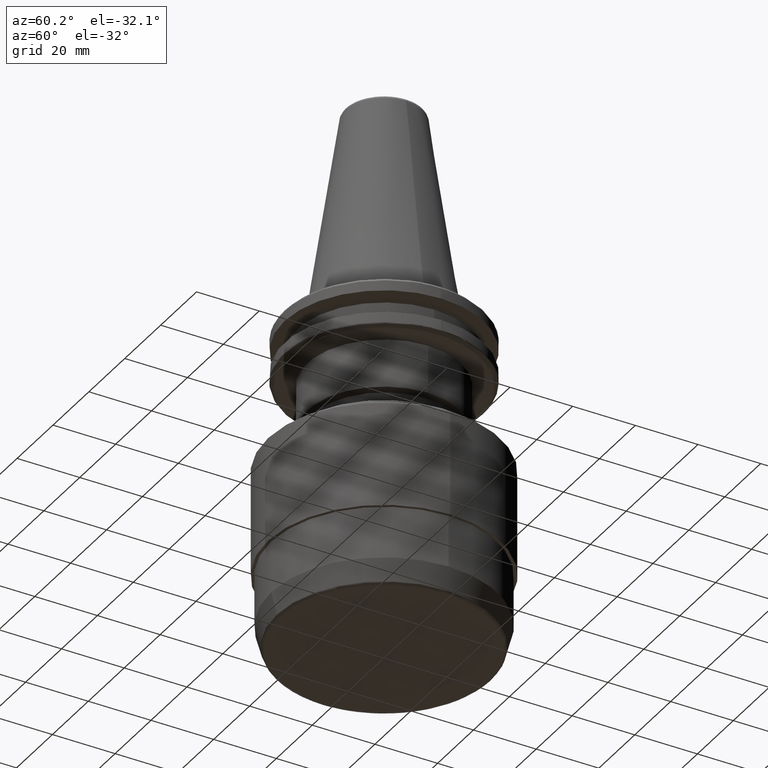
[diagram: clean part render]
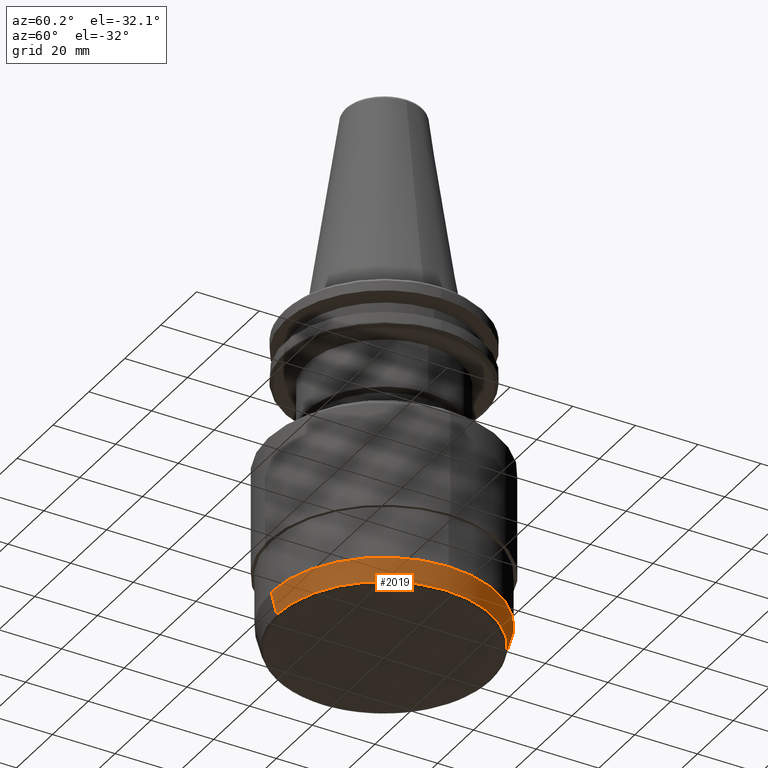
[diagram: same view with one face highlighted and labeled with its STEP entity id]
A machine part, auxiliary view. The second image highlights one B-rep face of the part: STEP entity #2019.
In plain terms, the highlighted conical surface has half-angle 15 deg.
Its self-contained STEP definition (entity closure, byte-faithful):
#24 = CARTESIAN_POINT ( 'NONE',  ( 4.408728552981645400E-015, 36.00000062100495800, -97.53589606724000300 ) ) ;
#46 = ORIENTED_EDGE ( 'NONE', *, *, #434, .F. ) ;
#60 = VERTEX_POINT ( 'NONE', #891 ) ;
#136 = ORIENTED_EDGE ( 'NONE', *, *, #1546, .T. ) ;
#139 = EDGE_CURVE ( 'NONE', #2643, #2700, #1592, .T. ) ;
#154 = DIRECTION ( 'NONE',  ( -0.0000000000000000000, -0.0000000000000000000, 1.000000000000000000 ) ) ;
#162 = CARTESIAN_POINT ( 'NONE',  ( 0.0000000000000000000, 0.0000000000000000000, -97.53589606724000300 ) ) ;
#205 = VERTEX_POINT ( 'NONE', #24 ) ;
#228 = ORIENTED_EDGE ( 'NONE', *, *, #139, .F. ) ;
#268 = DIRECTION ( 'NONE',  ( 0.0000000000000000000, -1.000000000000000000, -3.812579068080895000E-016 ) ) ;
#434 = EDGE_CURVE ( 'NONE', #60, #205, #3022, .T. ) ;
#555 = CARTESIAN_POINT ( 'NONE',  ( 4.298424506623866300E-015, 34.19859883831010400, -104.2588190451025400 ) ) ;
#732 = VERTEX_POINT ( 'NONE', #2813 ) ;
#744 = DIRECTION ( 'NONE',  ( -0.0000000000000000000, -0.0000000000000000000, 1.000000000000000000 ) ) ;
#891 = CARTESIAN_POINT ( 'NONE',  ( 36.00000062100495800, 0.0000000000000000000, -97.53589606724000300 ) ) ;
#1035 = CARTESIAN_POINT ( 'NONE',  ( 0.0000000000000000000, -36.00000062100496500, -97.53589606724000300 ) ) ;
#1038 = CARTESIAN_POINT ( 'NONE',  ( 0.0000000000000000000, 0.0000000000000000000, -104.2588190451025400 ) ) ;
#1285 = AXIS2_PLACEMENT_3D ( 'NONE', #3297, #3028, #268 ) ;
#1288 = CARTESIAN_POINT ( 'NONE',  ( 0.0000000000000000000, -34.19859883831010400, -104.2588190451025400 ) ) ;
#1307 = DIRECTION ( 'NONE',  ( 1.000000000000000000, 0.0000000000000000000, 4.057998947099616600E-016 ) ) ;
#1380 = ORIENTED_EDGE ( 'NONE', *, *, #2087, .T. ) ;
#1451 = AXIS2_PLACEMENT_3D ( 'NONE', #162, #744, #2365 ) ;
#1465 = ORIENTED_EDGE ( 'NONE', *, *, #2149, .T. ) ;
#1539 = DIRECTION ( 'NONE',  ( 0.0000000000000000000, 0.0000000000000000000, 1.000000000000000000 ) ) ;
#1546 = EDGE_CURVE ( 'NONE', #732, #1980, #1846, .T. ) ;
#1592 = LINE ( 'NONE', #3188, #2820 ) ;
#1721 = FACE_OUTER_BOUND ( 'NONE', #3300, .T. ) ;
#1837 = CARTESIAN_POINT ( 'NONE',  ( 0.0000000000000000000, 0.0000000000000000000, -97.53589606724000300 ) ) ;
#1846 = CIRCLE ( 'NONE', #2951, 34.19859883831010400 ) ;
#1966 = DIRECTION ( 'NONE',  ( 0.0000000000000000000, -0.2588190451025152400, 0.9659258262890697600 ) ) ;
#1980 = VERTEX_POINT ( 'NONE', #555 ) ;
#2019 = ADVANCED_FACE ( 'NONE', ( #1721 ), #3046, .T. ) ;
#2035 = CIRCLE ( 'NONE', #2737, 36.00000062100495800 ) ;
#2086 = DIRECTION ( 'NONE',  ( 1.000000000000000000, 0.0000000000000000000, 0.0000000000000000000 ) ) ;
#2087 = EDGE_CURVE ( 'NONE', #2643, #732, #3132, .T. ) ;
#2149 = EDGE_CURVE ( 'NONE', #1980, #205, #2967, .T. ) ;
#2241 = VECTOR ( 'NONE', #3112, 999.9999999999998900 ) ;
#2365 = DIRECTION ( 'NONE',  ( 1.000000000000000000, 0.0000000000000000000, 0.0000000000000000000 ) ) ;
#2506 = AXIS2_PLACEMENT_3D ( 'NONE', #3105, #1539, #3367 ) ;
#2643 = VERTEX_POINT ( 'NONE', #1288 ) ;
#2700 = VERTEX_POINT ( 'NONE', #1035 ) ;
#2703 = EDGE_CURVE ( 'NONE', #2700, #60, #2035, .T. ) ;
#2737 = AXIS2_PLACEMENT_3D ( 'NONE', #1837, #154, #2086 ) ;
#2813 = CARTESIAN_POINT ( 'NONE',  ( 34.19859883831010400, 0.0000000000000000000, -104.2588190451025400 ) ) ;
#2820 = VECTOR ( 'NONE', #1966, 1000.000000000000100 ) ;
#2850 = CARTESIAN_POINT ( 'NONE',  ( 4.457714348896365900E-015, 36.39999999999999900, -96.04307806183447800 ) ) ;
#2886 = DIRECTION ( 'NONE',  ( 0.0000000000000000000, 0.0000000000000000000, 1.000000000000000000 ) ) ;
#2951 = AXIS2_PLACEMENT_3D ( 'NONE', #1038, #2886, #1307 ) ;
#2967 = LINE ( 'NONE', #2850, #2241 ) ;
#3022 = CIRCLE ( 'NONE', #1451, 36.00000062100495800 ) ;
#3028 = DIRECTION ( 'NONE',  ( 0.0000000000000000000, -1.906289534040447700E-016, 1.000000000000000000 ) ) ;
#3046 = CONICAL_SURFACE ( 'NONE', #1285, 36.39999999999999900, 0.2617993877991435200 ) ;
#3105 = CARTESIAN_POINT ( 'NONE',  ( 0.0000000000000000000, 0.0000000000000000000, -104.2588190451025400 ) ) ;
#3112 = DIRECTION ( 'NONE',  ( 3.169619151431695900E-017, 0.2588190451025149100, 0.9659258262890699800 ) ) ;
#3114 = ORIENTED_EDGE ( 'NONE', *, *, #2703, .F. ) ;
#3132 = CIRCLE ( 'NONE', #2506, 34.19859883831010400 ) ;
#3188 = CARTESIAN_POINT ( 'NONE',  ( 0.0000000000000000000, -36.39999999999999900, -96.04307806183450700 ) ) ;
#3297 = CARTESIAN_POINT ( 'NONE',  ( 0.0000000000000000000, 0.0000000000000000000, -96.04307806183449300 ) ) ;
#3300 = EDGE_LOOP ( 'NONE', ( #1380, #136, #1465, #46, #3114, #228 ) ) ;
#3367 = DIRECTION ( 'NONE',  ( 1.000000000000000000, 0.0000000000000000000, 4.057998947099616600E-016 ) ) ;